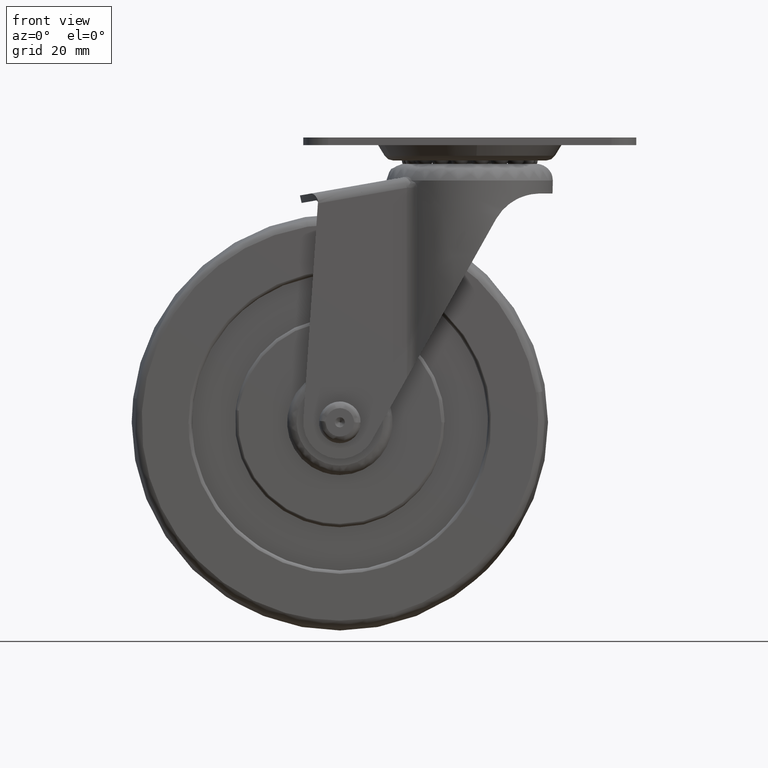
[diagram: clean part render]
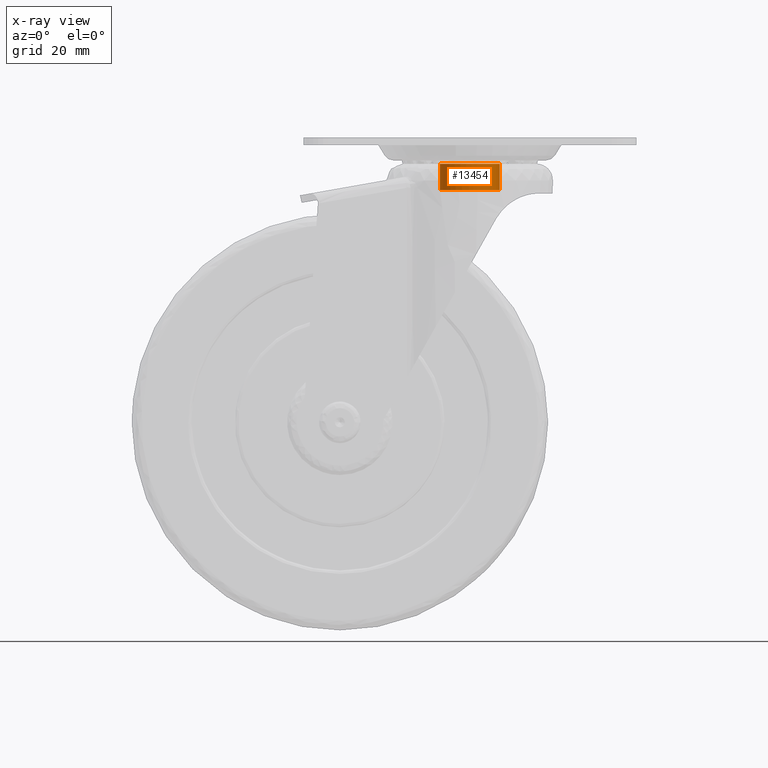
[diagram: x-ray — body ghosted, one internal face saturated and labeled with its STEP entity id]
A machine part, front view, then the same camera in x-ray: the body is ghosted and one INTERNAL B-rep face — a face not visible from any outside direction — is saturated and labeled: STEP entity #13454.
In plain terms, the highlighted face is a freeform B-spline surface patch.
Its self-contained STEP definition (entity closure, byte-faithful):
#13307=CARTESIAN_POINT('',(45.195191181243793,6.528369339110643,77.797494900089092));
#13308=CARTESIAN_POINT('',(51.723560520354368,0.333178157866859,77.797494900089092));
#13309=CARTESIAN_POINT('',(45.528369339110583,-6.195191181243727,77.797494900089092));
#13310=CARTESIAN_POINT('',(39.333178157866797,-12.723560520354313,77.797494900089092));
#13311=CARTESIAN_POINT('',(32.804808818756207,-6.528369339110530,77.797494900089092));
#13312=CARTESIAN_POINT('',(26.276439479645628,-0.333178157866746,77.797494900089092));
#13313=CARTESIAN_POINT('',(32.471630660889417,6.195191181243841,77.797494900089092));
#13314=CARTESIAN_POINT('',(45.195191181243793,6.528369339110643,69.497561598850382));
#13315=CARTESIAN_POINT('',(51.723560520354368,0.333178157866859,69.497561598850382));
#13316=CARTESIAN_POINT('',(45.528369339110583,-6.195191181243727,69.497561598850382));
#13317=CARTESIAN_POINT('',(39.333178157866797,-12.723560520354313,69.497561598850382));
#13318=CARTESIAN_POINT('',(32.804808818756207,-6.528369339110530,69.497561598850382));
#13319=CARTESIAN_POINT('',(26.276439479645628,-0.333178157866746,69.497561598850382));
#13320=CARTESIAN_POINT('',(32.471630660889417,6.195191181243841,69.497561598850382));
#13328=(BOUNDED_SURFACE()B_SPLINE_SURFACE(2,1,((#13307,#13314),(#13308,#13315),(#13309,#13316),(#13310,#13317),(#13311,#13318),(#13312,#13319),(#13313,#13320)),.UNSPECIFIED.,.F.,.F.,.U.)B_SPLINE_SURFACE_WITH_KNOTS((3,2,2,3),(2,2),(0.0,14.911688245431421,29.823376490862831,44.735064736294248),(0.0,8.299933301238710),.UNSPECIFIED.)GEOMETRIC_REPRESENTATION_ITEM()RATIONAL_B_SPLINE_SURFACE(((1.0,1.0),(0.707106781186548,0.707106781186548),(1.0,1.0),(0.707106781186548,0.707106781186548),(1.0,1.0),(0.707106781186548,0.707106781186548),(1.0,1.0)))REPRESENTATION_ITEM('')SURFACE());
#13329=CARTESIAN_POINT('',(45.195189600185067,6.528370839478619,77.599995000000092));
#13330=VERTEX_POINT('',#13329);
#13331=CARTESIAN_POINT('',(48.0,5.684342E-014,77.599995000000106));
#13332=VERTEX_POINT('',#13331);
#13333=CARTESIAN_POINT('',(45.195189600185067,6.528370839478619,77.599995000000092));
#13334=CARTESIAN_POINT('',(48.000000000000007,3.866706444689136,77.599995000000106));
#13335=CARTESIAN_POINT('',(48.0,5.684342E-014,77.599995000000106));
#13343=(BOUNDED_CURVE()B_SPLINE_CURVE(2,(#13333,#13334,#13335),.UNSPECIFIED.,.F.,.U.)B_SPLINE_CURVE_WITH_KNOTS((3,3),(0.871049490110260,1.0),.UNSPECIFIED.)CURVE()GEOMETRIC_REPRESENTATION_ITEM()RATIONAL_B_SPLINE_CURVE((0.853699664075973,0.848925080363032,1.0))REPRESENTATION_ITEM(''));
#13344=EDGE_CURVE('',#13330,#13332,#13343,.T.);
#13345=ORIENTED_EDGE('',*,*,#13344,.F.);
#13346=CARTESIAN_POINT('',(45.195190725743089,6.528369771262438,69.699998998862498));
#13347=VERTEX_POINT('',#13346);
#13348=CARTESIAN_POINT('',(45.195189600185067,6.528370839478619,77.599995000000092));
#13349=CARTESIAN_POINT('',(45.195190725743089,6.528369771262438,69.699998998862498));
#13350=QUASI_UNIFORM_CURVE('',1,(#13348,#13349),.UNSPECIFIED.,.F.,.U.);
#13351=EDGE_CURVE('',#13330,#13347,#13350,.T.);
#13352=ORIENTED_EDGE('',*,*,#13351,.T.);
#13353=CARTESIAN_POINT('',(48.0,5.684342E-014,69.699999000000091));
#13354=VERTEX_POINT('',#13353);
#13355=CARTESIAN_POINT('',(45.195190725743075,6.528369771262438,69.699998998862498));
#13356=CARTESIAN_POINT('',(48.000000000000007,3.866705897384323,69.699999000000091));
#13357=CARTESIAN_POINT('',(48.0,5.684342E-014,69.699999000000091));
#13365=(BOUNDED_CURVE()B_SPLINE_CURVE(2,(#13355,#13356,#13357),.UNSPECIFIED.,.F.,.U.)B_SPLINE_CURVE_WITH_KNOTS((3,3),(0.871049505604865,1.0),.UNSPECIFIED.)CURVE()GEOMETRIC_REPRESENTATION_ITEM()RATIONAL_B_SPLINE_CURVE((0.853699662928553,0.848925098516091,1.0))REPRESENTATION_ITEM(''));
#13366=EDGE_CURVE('',#13347,#13354,#13365,.T.);
#13367=ORIENTED_EDGE('',*,*,#13366,.T.);
#13368=CARTESIAN_POINT('',(38.773829140318092,-8.997157703532249,69.699998996441579));
#13369=VERTEX_POINT('',#13368);
#13370=CARTESIAN_POINT('',(48.0,5.684342E-014,69.699999000000091));
#13371=CARTESIAN_POINT('',(48.0,-8.999999999999941,69.699999000000091));
#13372=CARTESIAN_POINT('',(39.0,-8.999999999999941,69.699999000000091));
#13373=CARTESIAN_POINT('',(38.886896710197377,-8.999999999999943,69.699999000000091));
#13374=CARTESIAN_POINT('',(38.773829140318078,-8.997157703532249,69.699998996441579));
#13382=(BOUNDED_CURVE()B_SPLINE_CURVE(2,(#13370,#13371,#13372,#13373,#13374),.UNSPECIFIED.,.F.,.U.)B_SPLINE_CURVE_WITH_KNOTS((3,2,3),(0.0,0.250000000000000,0.254420108257104),.UNSPECIFIED.)CURVE()GEOMETRIC_REPRESENTATION_ITEM()RATIONAL_B_SPLINE_CURVE((1.0,0.707106781186547,1.0,0.994821521060291,0.989826157620748))REPRESENTATION_ITEM(''));
#13383=EDGE_CURVE('',#13354,#13369,#13382,.T.);
#13384=ORIENTED_EDGE('',*,*,#13383,.T.);
#13385=CARTESIAN_POINT('',(30.0,5.684342E-014,69.699999000000091));
#13386=VERTEX_POINT('',#13385);
#13387=CARTESIAN_POINT('',(38.773829140318085,-8.997157703532249,69.699998996441579));
#13388=CARTESIAN_POINT('',(30.0,-8.776600884275515,69.699999000000091));
#13389=CARTESIAN_POINT('',(30.0,5.684342E-014,69.699999000000091));
#13397=(BOUNDED_CURVE()B_SPLINE_CURVE(2,(#13387,#13388,#13389),.UNSPECIFIED.,.F.,.U.)B_SPLINE_CURVE_WITH_KNOTS((3,3),(0.254420108257104,0.500000000000000),.UNSPECIFIED.)CURVE()GEOMETRIC_REPRESENTATION_ITEM()RATIONAL_B_SPLINE_CURVE((0.989826157620748,0.712285260126256,1.0))REPRESENTATION_ITEM(''));
#13398=EDGE_CURVE('',#13369,#13386,#13397,.T.);
#13399=ORIENTED_EDGE('',*,*,#13398,.T.);
#13400=CARTESIAN_POINT('',(32.471629147115003,6.195189586057666,69.699999000000162));
#13401=VERTEX_POINT('',#13400);
#13402=CARTESIAN_POINT('',(30.0,5.684342E-014,69.699999000000091));
#13403=CARTESIAN_POINT('',(30.000000000000004,3.590634639187624,69.699999000000091));
#13404=CARTESIAN_POINT('',(32.471629147114996,6.195189586057666,69.699999000000162));
#13412=(BOUNDED_CURVE()B_SPLINE_CURVE(2,(#13402,#13403,#13404),.UNSPECIFIED.,.F.,.U.)B_SPLINE_CURVE_WITH_KNOTS((3,3),(0.500000000000000,0.621049489783680),.UNSPECIFIED.)CURVE()GEOMETRIC_REPRESENTATION_ITEM()RATIONAL_B_SPLINE_CURVE((1.0,0.858181701206127,0.853699664100157))REPRESENTATION_ITEM(''));
#13413=EDGE_CURVE('',#13386,#13401,#13412,.T.);
#13414=ORIENTED_EDGE('',*,*,#13413,.T.);
#13415=CARTESIAN_POINT('',(32.471629165792208,6.195189605739357,77.599995000000121));
#13416=VERTEX_POINT('',#13415);
#13417=CARTESIAN_POINT('',(32.471629165792208,6.195189605739357,77.599995000000121));
#13418=CARTESIAN_POINT('',(32.471629147115003,6.195189586057666,69.699999000000162));
#13419=QUASI_UNIFORM_CURVE('',1,(#13417,#13418),.UNSPECIFIED.,.F.,.U.);
#13420=EDGE_CURVE('',#13416,#13401,#13419,.T.);
#13421=ORIENTED_EDGE('',*,*,#13420,.F.);
#13422=CARTESIAN_POINT('',(30.0,5.684342E-014,77.599995000000106));
#13423=VERTEX_POINT('',#13422);
#13424=CARTESIAN_POINT('',(30.0,5.684342E-014,77.599995000000106));
#13425=CARTESIAN_POINT('',(30.000000000000007,3.590634654913561,77.599995000000106));
#13426=CARTESIAN_POINT('',(32.471629165792208,6.195189605739357,77.599995000000121));
#13434=(BOUNDED_CURVE()B_SPLINE_CURVE(2,(#13424,#13425,#13426),.UNSPECIFIED.,.F.,.U.)B_SPLINE_CURVE_WITH_KNOTS((3,3),(0.500000000000000,0.621049490238655),.UNSPECIFIED.)CURVE()GEOMETRIC_REPRESENTATION_ITEM()RATIONAL_B_SPLINE_CURVE((1.0,0.858181700673091,0.853699664066464))REPRESENTATION_ITEM(''));
#13435=EDGE_CURVE('',#13423,#13416,#13434,.T.);
#13436=ORIENTED_EDGE('',*,*,#13435,.F.);
#13437=CARTESIAN_POINT('',(48.0,5.684342E-014,77.599995000000106));
#13438=CARTESIAN_POINT('',(48.0,-8.999999999999941,77.599995000000106));
#13439=CARTESIAN_POINT('',(39.0,-8.999999999999941,77.599995000000106));
#13440=CARTESIAN_POINT('',(29.999999999999993,-8.999999999999941,77.599995000000106));
#13441=CARTESIAN_POINT('',(30.0,5.684342E-014,77.599995000000106));
#13449=(BOUNDED_CURVE()B_SPLINE_CURVE(2,(#13437,#13438,#13439,#13440,#13441),.UNSPECIFIED.,.F.,.U.)B_SPLINE_CURVE_WITH_KNOTS((3,2,3),(0.0,0.250000000000000,0.500000000000000),.UNSPECIFIED.)CURVE()GEOMETRIC_REPRESENTATION_ITEM()RATIONAL_B_SPLINE_CURVE((1.0,0.707106781186547,1.0,0.707106781186547,1.0))REPRESENTATION_ITEM(''));
#13450=EDGE_CURVE('',#13332,#13423,#13449,.T.);
#13451=ORIENTED_EDGE('',*,*,#13450,.F.);
#13452=EDGE_LOOP('',(#13345,#13352,#13367,#13384,#13399,#13414,#13421,#13436,#13451));
#13453=FACE_OUTER_BOUND('',#13452,.T.);
#13454=ADVANCED_FACE('',(#13453),#13328,.F.);